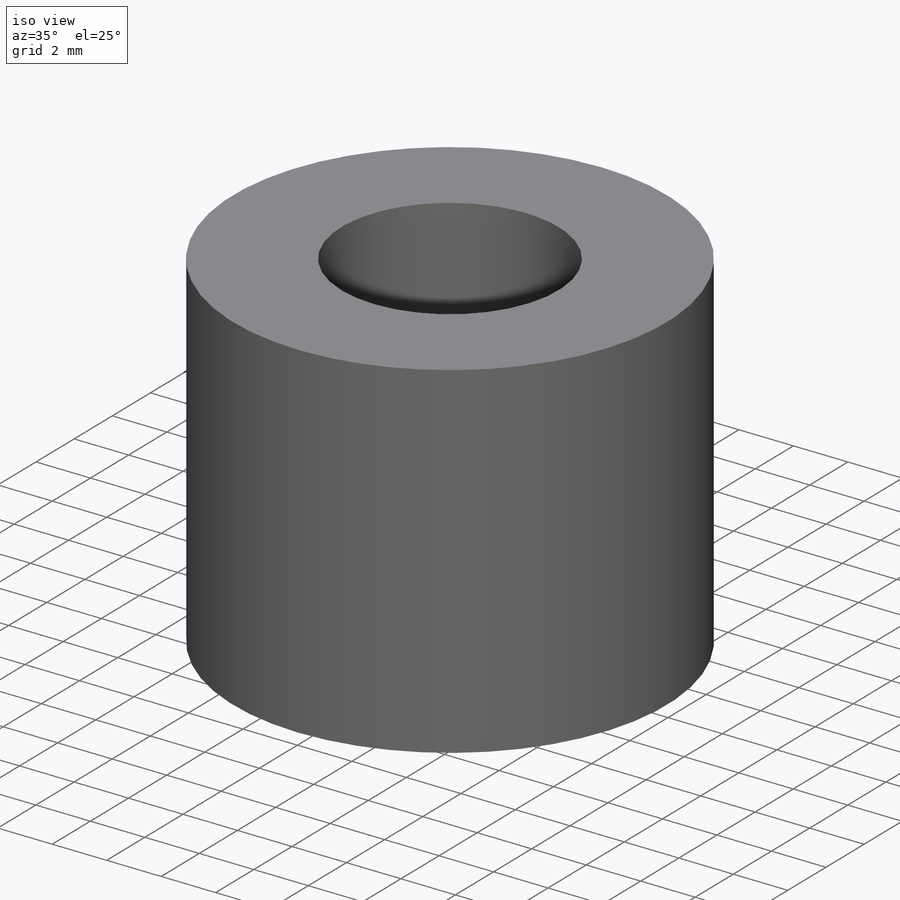
[diagram: iso view]
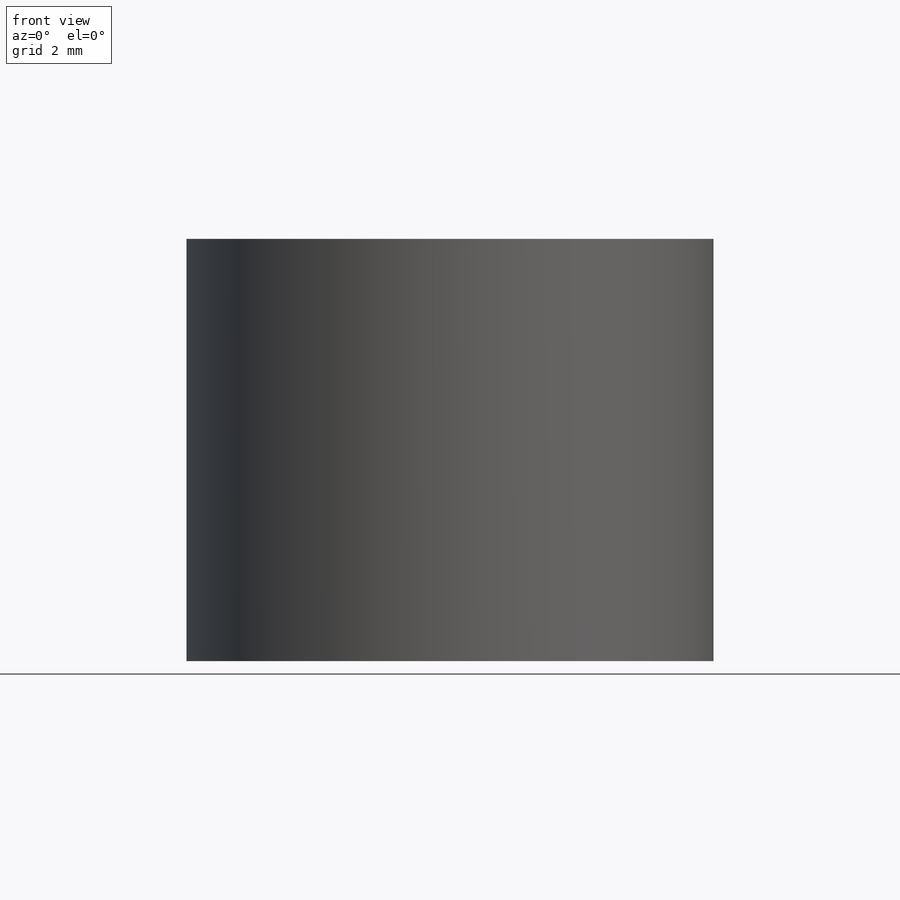
[diagram: front view]
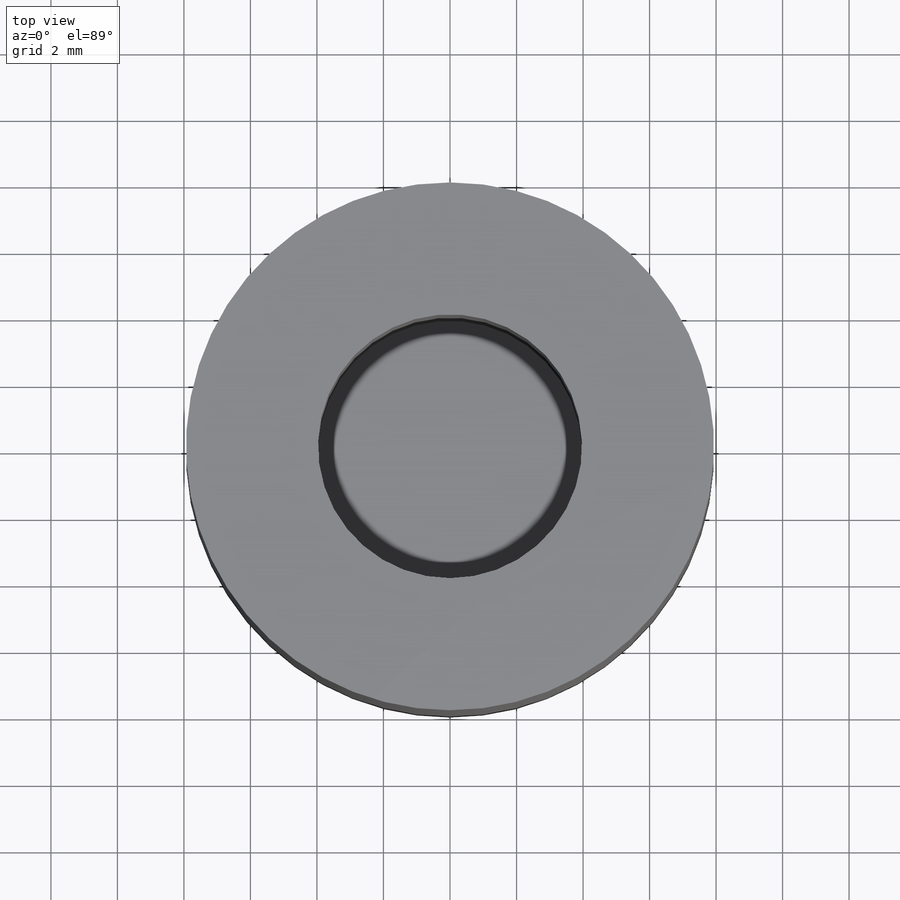
[diagram: top view]
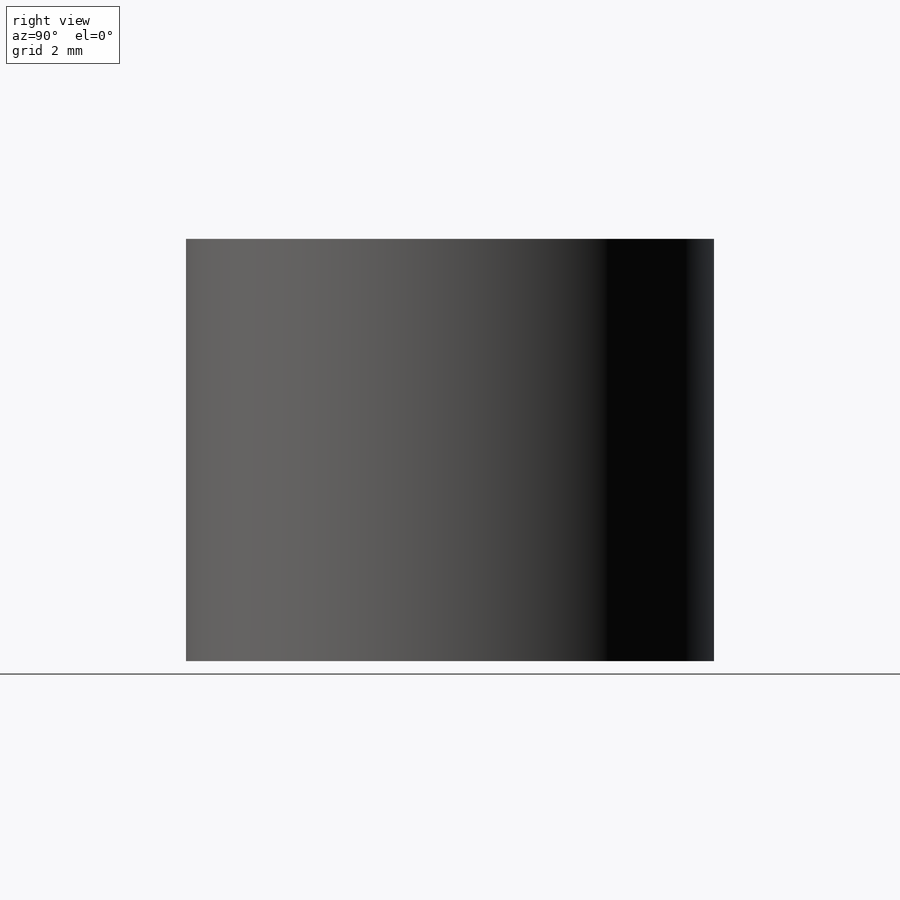
[diagram: right view]
SOLIDWORKS PART (.sldprt)
format: sldprt  version: not decoded by parser v0  size: 155,136 bytes
history: native  units: mm
features: sketch x3, material x1, extrude x1, hole x1, thread x1 (+11 scaffold rows collapsed)
feature tree (18):
  scaffold x11  (default folders/planes/origin — collapsed)
  material  "Acrylic (Medium-high impact)"
  sketch  "Sketch1"  dims[D1=15.875mm]
  extrude  "Boss-Extrude1"  Depth=12.7mm
  hole  "3/8-16 Tapped Hole1"  Diameter=7.9375mm Depth=11.176mm
  sketch  "Sketch3"
  sketch  "Sketch2"  dims[hole-wizard template sketch: 47 standard entries collapsed; hole parameters kept: c15.Tap Drill Depth=11.176mm c15.D3=~14.816244mm c15.Drill Angle=180.0deg]
  thread  "Hole Thread1"  Diameter=11.176mm  [1 undecoded]
decode coverage: 5 of 6 modeling features carry decoded parameters
note: ~ marks probable driven/reference dimensions
note: 1 parameter value undecoded
note: suppression state not decoded; provenance and decode notes live in map.json
